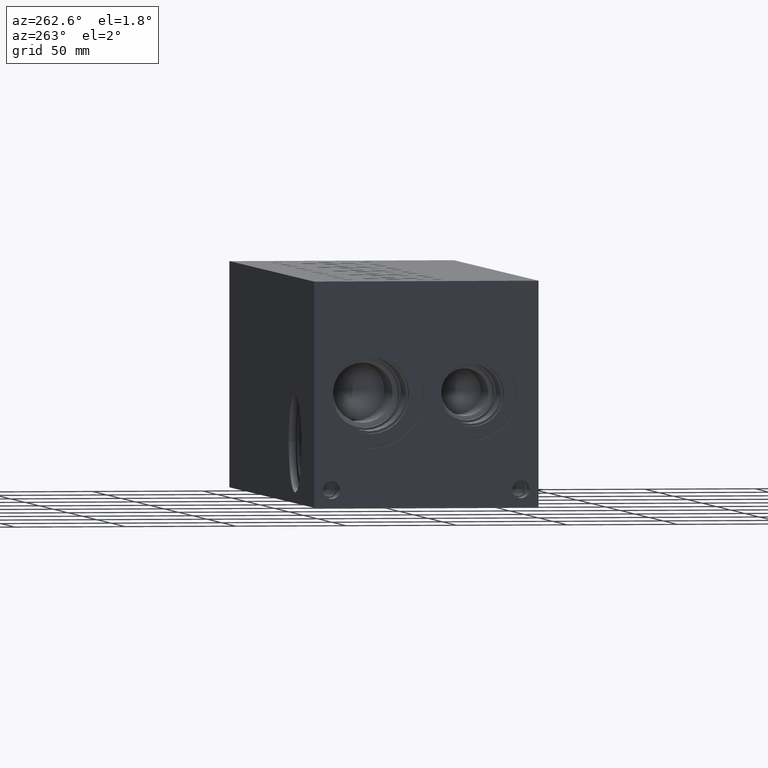
[diagram: clean part render]
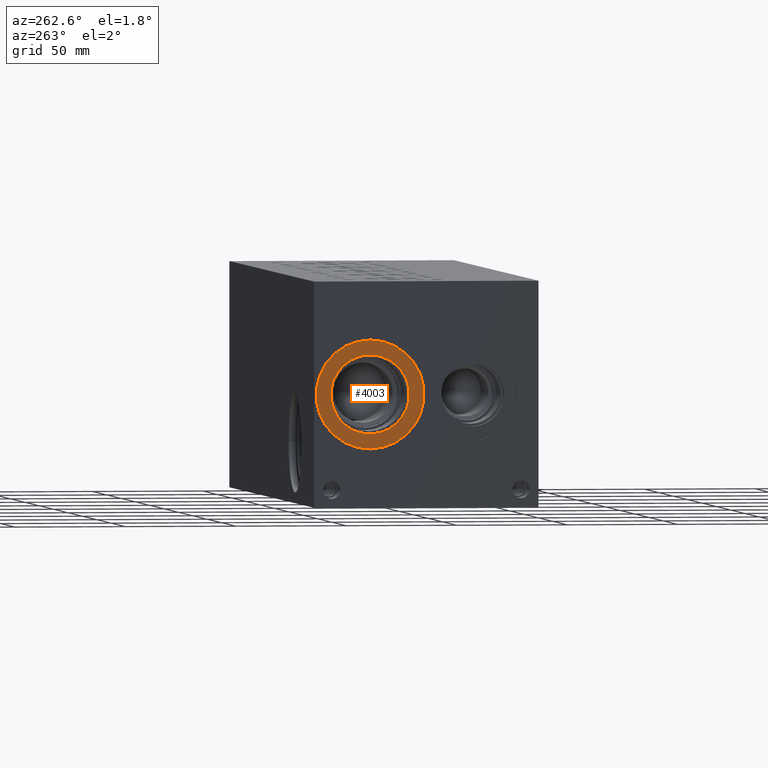
[diagram: same view with one face highlighted and labeled with its STEP entity id]
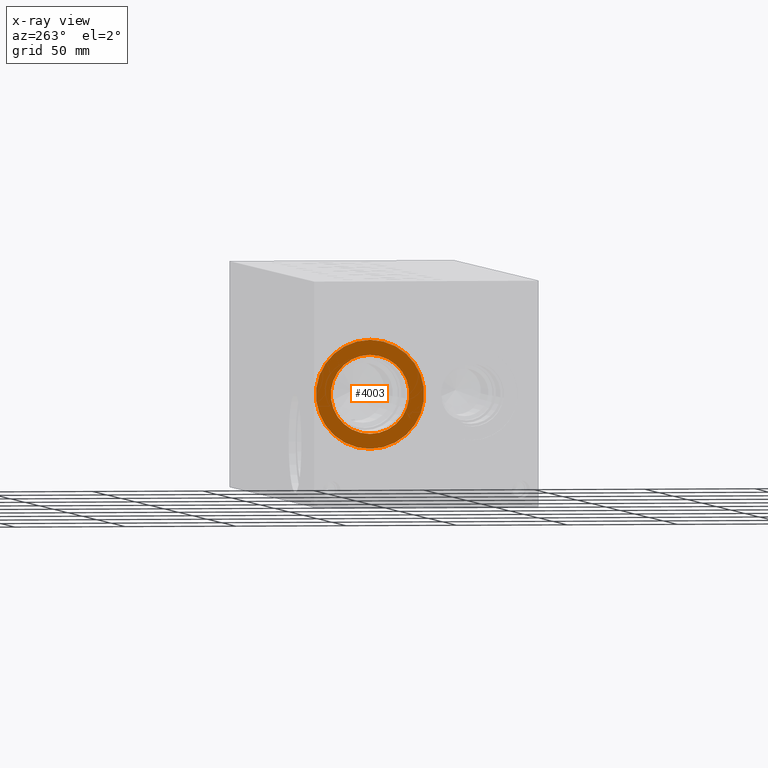
[diagram: x-ray of the same camera — body ghosted, the highlighted face saturated]
A machine part, auxiliary view. The second image highlights one B-rep face of the part: STEP entity #4003.
The next image is the same camera in x-ray: the body ghosted, the highlighted face saturated — about 0% of this face is hidden behind the body in this view.
In plain terms, the highlighted planar face has unit normal (1, 0, 0).
Its self-contained STEP definition (entity closure, byte-faithful):
#3969=CARTESIAN_POINT('',(0.762,76.200000000000017,68.554599999999994));
#3970=VERTEX_POINT('',#3969);
#3971=CARTESIAN_POINT('',(0.762,76.200000000000017,50.799999999999997));
#3972=DIRECTION('',(-1.0,0.0,0.0));
#3973=DIRECTION('',(0.0,0.0,1.0));
#3974=AXIS2_PLACEMENT_3D('',#3971,#3972,#3973);
#3975=CIRCLE('',#3974,17.754599999999996);
#3976=EDGE_CURVE('',#3970,#3970,#3975,.T.);
#3984=CARTESIAN_POINT('',(0.762,76.200000000000017,71.920099999999991));
#3985=DIRECTION('',(1.0,0.0,0.0));
#3986=DIRECTION('',(0.0,0.0,-1.0));
#3987=AXIS2_PLACEMENT_3D('',#3984,#3985,#3986);
#3988=PLANE('',#3987);
#3989=CARTESIAN_POINT('',(0.762,76.200000000000017,75.285600000000002));
#3990=VERTEX_POINT('',#3989);
#3991=CARTESIAN_POINT('',(0.762,76.200000000000017,50.799999999999997));
#3992=DIRECTION('',(-1.0,0.0,0.0));
#3993=DIRECTION('',(0.0,0.0,1.0));
#3994=AXIS2_PLACEMENT_3D('',#3991,#3992,#3993);
#3995=CIRCLE('',#3994,24.485600000000005);
#3996=EDGE_CURVE('',#3990,#3990,#3995,.T.);
#3997=ORIENTED_EDGE('',*,*,#3996,.T.);
#3998=EDGE_LOOP('',(#3997));
#3999=FACE_OUTER_BOUND('',#3998,.T.);
#4000=ORIENTED_EDGE('',*,*,#3976,.F.);
#4001=EDGE_LOOP('',(#4000));
#4002=FACE_BOUND('',#4001,.T.);
#4003=ADVANCED_FACE('',(#3999,#4002),#3988,.F.);